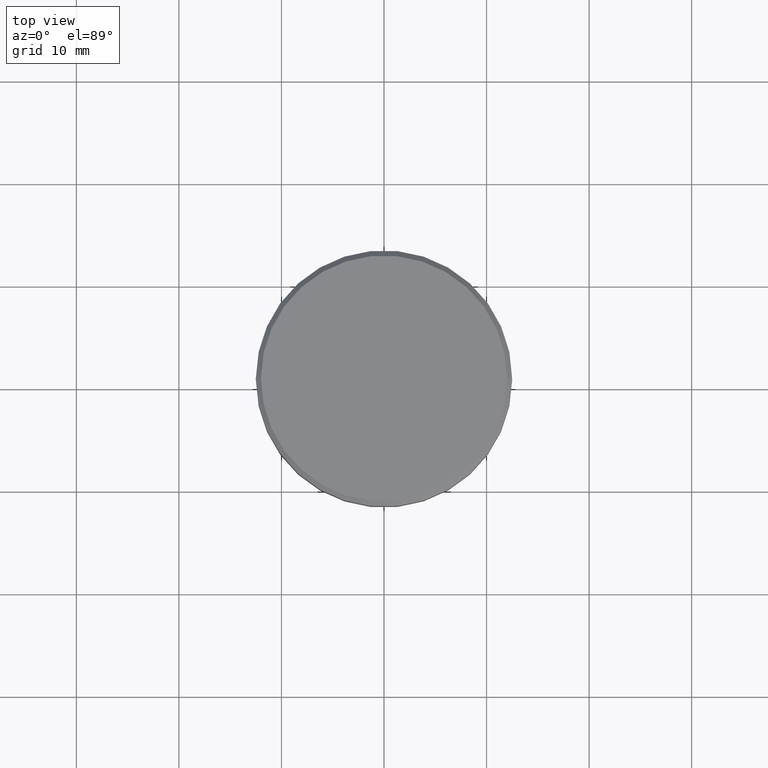
[diagram: clean part render]
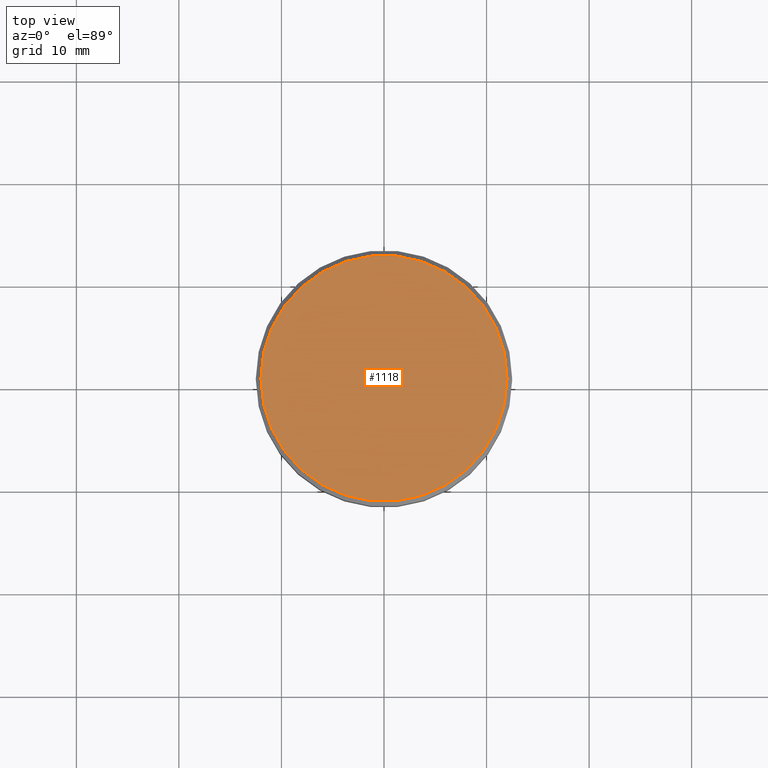
[diagram: same view with one face highlighted and labeled with its STEP entity id]
A machine part, top view. The second image highlights one B-rep face of the part: STEP entity #1118.
In plain terms, the highlighted planar face has unit normal (0, -0, 1).
Its self-contained STEP definition (entity closure, byte-faithful):
#112 = ORIENTED_EDGE ( 'NONE', *, *, #698, .T. ) ;
#155 = VERTEX_POINT ( 'NONE', #833 ) ;
#233 = EDGE_CURVE ( 'NONE', #1155, #155, #513, .T. ) ;
#257 = DIRECTION ( 'NONE',  ( -0.000000000000000000, -0.000000000000000000, 1.000000000000000000 ) ) ;
#382 = CIRCLE ( 'NONE', #786, 11.99999999999999645 ) ;
#455 = DIRECTION ( 'NONE',  ( 1.000000000000000000, 0.000000000000000000, 0.000000000000000000 ) ) ;
#472 = ORIENTED_EDGE ( 'NONE', *, *, #233, .T. ) ;
#513 = CIRCLE ( 'NONE', #1182, 11.99999999999999645 ) ;
#535 = CARTESIAN_POINT ( 'NONE',  ( 0.000000000000000000, 0.000000000000000000, 0.000000000000000000 ) ) ;
#625 = FACE_OUTER_BOUND ( 'NONE', #861, .T. ) ;
#698 = EDGE_CURVE ( 'NONE', #155, #1155, #382, .T. ) ;
#714 = CARTESIAN_POINT ( 'NONE',  ( 0.000000000000000000, 0.000000000000000000, 0.000000000000000000 ) ) ;
#729 = CARTESIAN_POINT ( 'NONE',  ( 0.000000000000000000, 0.000000000000000000, 0.000000000000000000 ) ) ;
#786 = AXIS2_PLACEMENT_3D ( 'NONE', #714, #984, #455 ) ;
#814 = DIRECTION ( 'NONE',  ( 0.000000000000000000, -0.000000000000000000, 1.000000000000000000 ) ) ;
#833 = CARTESIAN_POINT ( 'NONE',  ( -11.99999999999999645, 0.000000000000000000, 0.000000000000000000 ) ) ;
#861 = EDGE_LOOP ( 'NONE', ( #112, #472 ) ) ;
#893 = DIRECTION ( 'NONE',  ( 1.000000000000000000, 0.000000000000000000, 0.000000000000000000 ) ) ;
#895 = CARTESIAN_POINT ( 'NONE',  ( 11.99999999999999645, 1.500192328955507537E-15, 0.000000000000000000 ) ) ;
#904 = AXIS2_PLACEMENT_3D ( 'NONE', #535, #814, #1172 ) ;
#984 = DIRECTION ( 'NONE',  ( -0.000000000000000000, -0.000000000000000000, 1.000000000000000000 ) ) ;
#1078 = PLANE ( 'NONE',  #904 ) ;
#1118 = ADVANCED_FACE ( 'NONE', ( #625 ), #1078, .T. ) ;
#1155 = VERTEX_POINT ( 'NONE', #895 ) ;
#1172 = DIRECTION ( 'NONE',  ( 1.000000000000000000, 0.000000000000000000, 0.000000000000000000 ) ) ;
#1182 = AXIS2_PLACEMENT_3D ( 'NONE', #729, #257, #893 ) ;